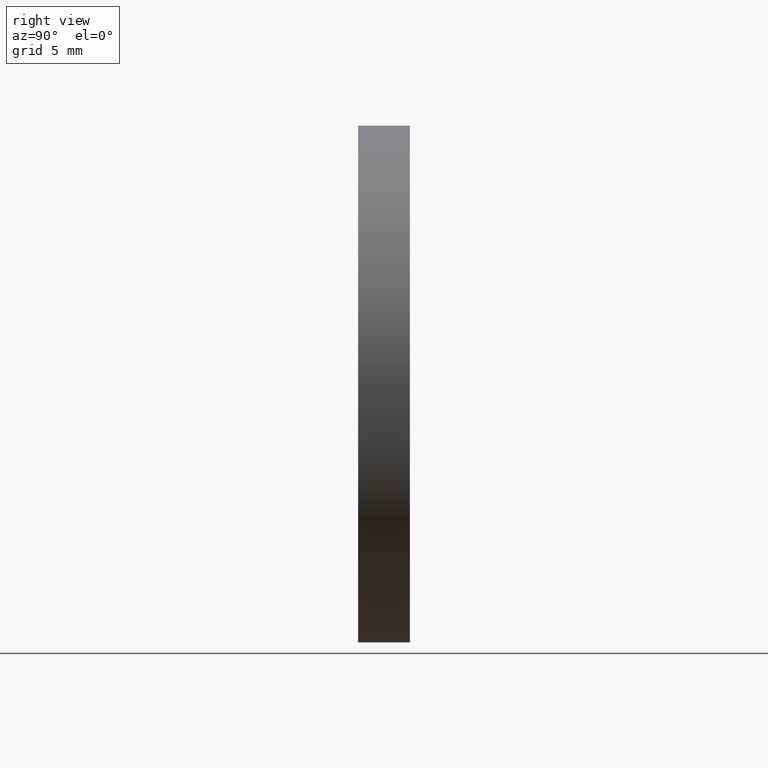
[diagram: clean part render]
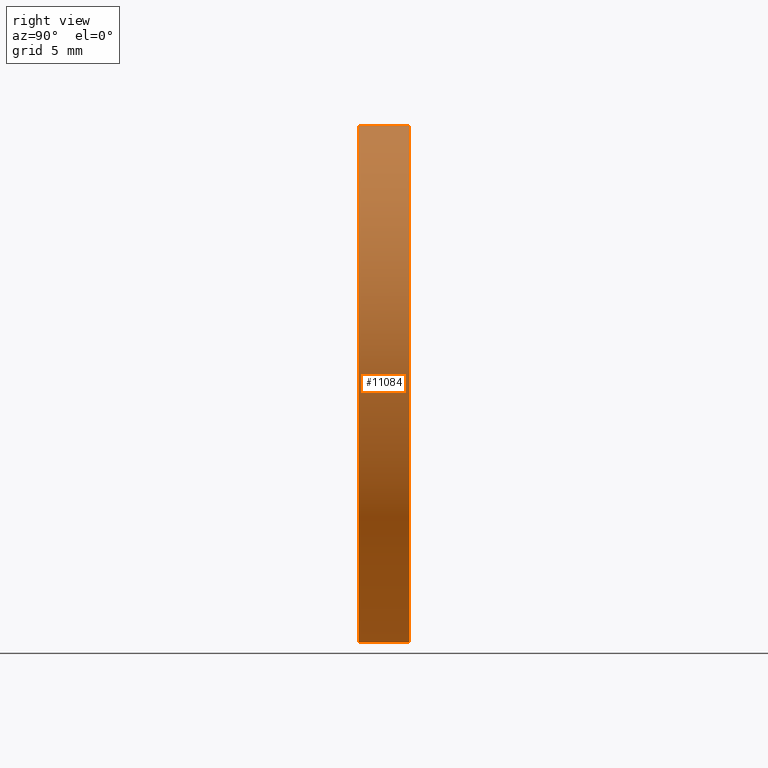
[diagram: same view with one face highlighted and labeled with its STEP entity id]
A machine part, right view. The second image highlights one B-rep face of the part: STEP entity #11084.
In plain terms, the highlighted cylindrical surface (partial cylindrical patch) has radius 20 mm, axis along (-0, -1, -0).
Its self-contained STEP definition (entity closure, byte-faithful):
#821 = DIRECTION ( 'NONE',  ( -0.0000000000000000000, -1.000000000000000000, -0.0000000000000000000 ) ) ;
#1000 = VERTEX_POINT ( 'NONE', #5462 ) ;
#1248 = AXIS2_PLACEMENT_3D ( 'NONE', #9567, #2018, #4776 ) ;
#1454 = CARTESIAN_POINT ( 'NONE',  ( 2.449293598294706500E-015, 4.000000000000000000, 20.00000000000000000 ) ) ;
#1522 = VECTOR ( 'NONE', #821, 1000.000000000000000 ) ;
#1698 = DIRECTION ( 'NONE',  ( 0.0000000000000000000, 1.000000000000000000, 0.0000000000000000000 ) ) ;
#2018 = DIRECTION ( 'NONE',  ( 0.0000000000000000000, 1.000000000000000000, 0.0000000000000000000 ) ) ;
#2119 = EDGE_CURVE ( 'NONE', #12238, #3887, #12174, .T. ) ;
#2856 = CARTESIAN_POINT ( 'NONE',  ( 2.449293598294706500E-015, 0.0000000000000000000, 20.00000000000000000 ) ) ;
#3221 = ORIENTED_EDGE ( 'NONE', *, *, #2119, .T. ) ;
#3393 = CIRCLE ( 'NONE', #11342, 20.00000000000000000 ) ;
#3472 = CYLINDRICAL_SURFACE ( 'NONE', #10559, 20.00000000000000000 ) ;
#3489 = DIRECTION ( 'NONE',  ( -0.0000000000000000000, -1.000000000000000000, -0.0000000000000000000 ) ) ;
#3785 = LINE ( 'NONE', #5335, #1522 ) ;
#3887 = VERTEX_POINT ( 'NONE', #2856 ) ;
#4776 = DIRECTION ( 'NONE',  ( 0.0000000000000000000, 0.0000000000000000000, 1.000000000000000000 ) ) ;
#5094 = CARTESIAN_POINT ( 'NONE',  ( 0.0000000000000000000, 4.000000000000000000, -20.00000000000000000 ) ) ;
#5127 = EDGE_CURVE ( 'NONE', #12238, #7281, #7225, .T. ) ;
#5335 = CARTESIAN_POINT ( 'NONE',  ( 0.0000000000000000000, 4.000000000000000000, -20.00000000000000000 ) ) ;
#5462 = CARTESIAN_POINT ( 'NONE',  ( 0.0000000000000000000, 0.0000000000000000000, -20.00000000000000000 ) ) ;
#5534 = EDGE_CURVE ( 'NONE', #3887, #1000, #3393, .T. ) ;
#6467 = ORIENTED_EDGE ( 'NONE', *, *, #10296, .F. ) ;
#7109 = VECTOR ( 'NONE', #3489, 1000.000000000000000 ) ;
#7225 = CIRCLE ( 'NONE', #1248, 20.00000000000000000 ) ;
#7281 = VERTEX_POINT ( 'NONE', #5094 ) ;
#7384 = DIRECTION ( 'NONE',  ( -0.0000000000000000000, -1.000000000000000000, -0.0000000000000000000 ) ) ;
#7766 = FACE_OUTER_BOUND ( 'NONE', #10307, .T. ) ;
#7966 = ORIENTED_EDGE ( 'NONE', *, *, #5534, .T. ) ;
#9111 = DIRECTION ( 'NONE',  ( 0.0000000000000000000, 0.0000000000000000000, 1.000000000000000000 ) ) ;
#9229 = DIRECTION ( 'NONE',  ( 0.0000000000000000000, 0.0000000000000000000, -1.000000000000000000 ) ) ;
#9567 = CARTESIAN_POINT ( 'NONE',  ( 0.0000000000000000000, 4.000000000000000000, 0.0000000000000000000 ) ) ;
#10110 = CARTESIAN_POINT ( 'NONE',  ( 0.0000000000000000000, 0.0000000000000000000, 0.0000000000000000000 ) ) ;
#10273 = ORIENTED_EDGE ( 'NONE', *, *, #5127, .F. ) ;
#10296 = EDGE_CURVE ( 'NONE', #7281, #1000, #3785, .T. ) ;
#10307 = EDGE_LOOP ( 'NONE', ( #10273, #3221, #7966, #6467 ) ) ;
#10559 = AXIS2_PLACEMENT_3D ( 'NONE', #11235, #7384, #9229 ) ;
#10959 = CARTESIAN_POINT ( 'NONE',  ( 2.449293598294706500E-015, 4.000000000000000000, 20.00000000000000000 ) ) ;
#11084 = ADVANCED_FACE ( 'NONE', ( #7766 ), #3472, .T. ) ;
#11235 = CARTESIAN_POINT ( 'NONE',  ( 0.0000000000000000000, 4.000000000000000000, 0.0000000000000000000 ) ) ;
#11342 = AXIS2_PLACEMENT_3D ( 'NONE', #10110, #1698, #9111 ) ;
#12174 = LINE ( 'NONE', #10959, #7109 ) ;
#12238 = VERTEX_POINT ( 'NONE', #1454 ) ;